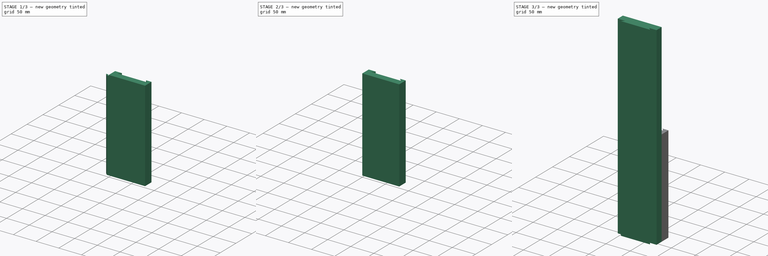
[diagram: build sequence overview — one tinted view per stage of 3, left to right]
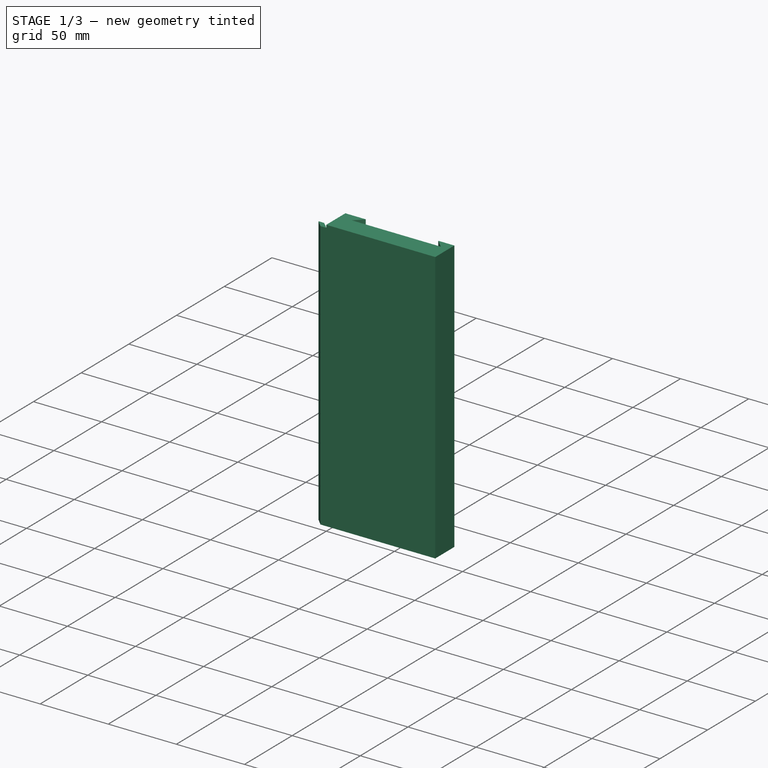
[diagram: stage 1 of 3 — iso view after this stage's code; geometry added in this stage tinted green]
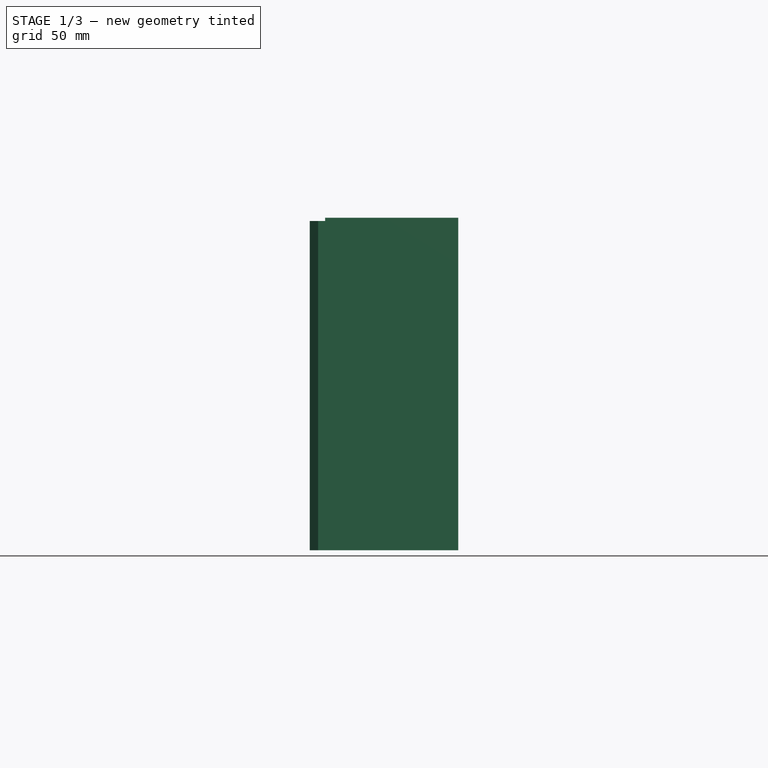
[diagram: stage 1 of 3 — front view after this stage's code; geometry added in this stage tinted green]
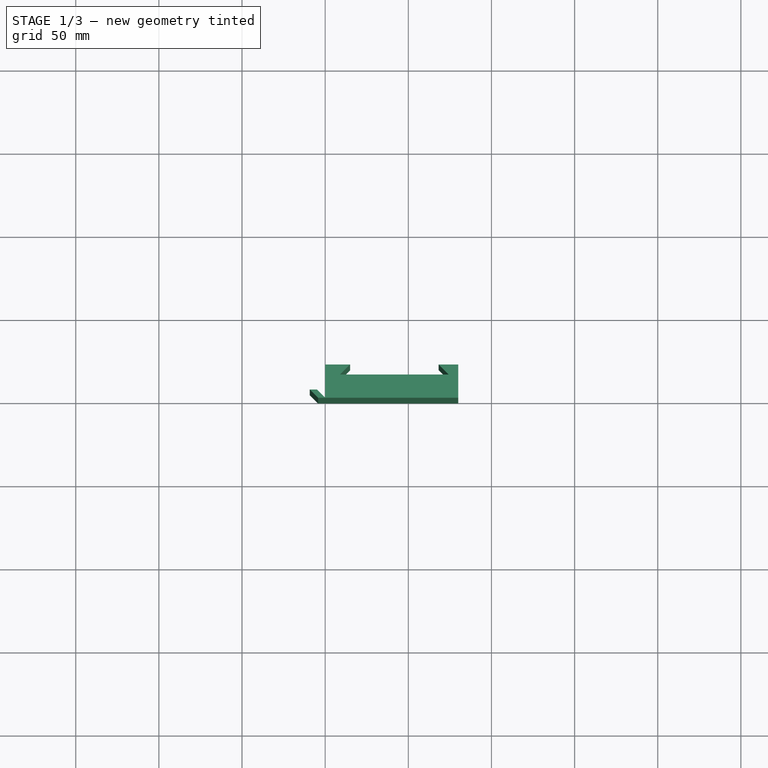
[diagram: stage 1 of 3 — top view after this stage's code; geometry added in this stage tinted green]
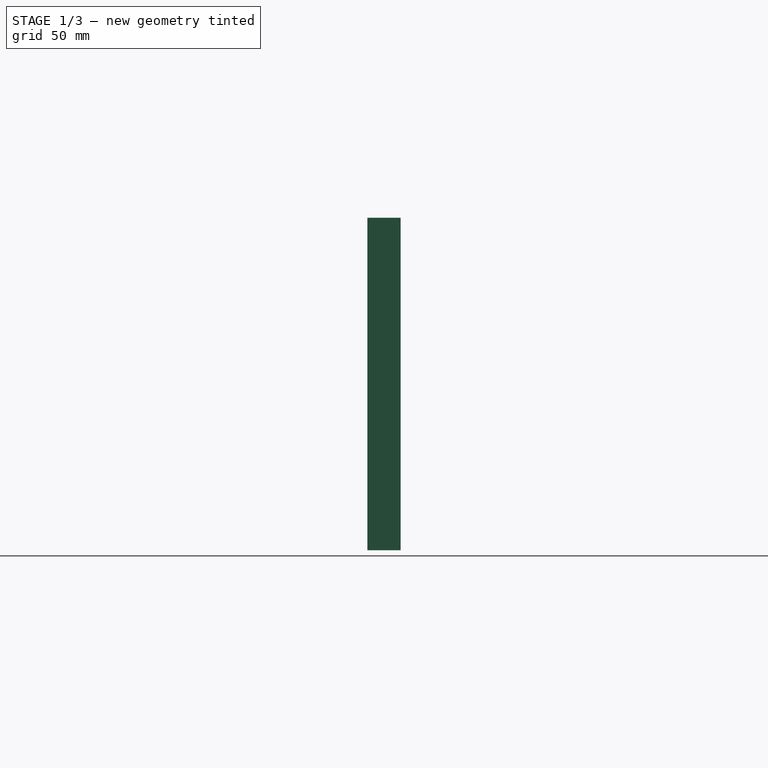
[diagram: stage 1 of 3 — right view after this stage's code; geometry added in this stage tinted green]
FCSTD DOCUMENT  (FreeCAD 0.19R24267 +99 (Git))
Label: DovetailSlide
License: All rights reserved
LicenseURL: https://en.wikipedia.org/wiki/All_rights_reserved
objects: Sketcher::SketchObject×4, PartDesign::Pad×4, PartDesign::Body×4, Spreadsheet::Sheet×1, Part::Cut×1
note: 17 computed .brp shape members not serialized (recipe doc carries the construction recipe); baked Part::Feature solids carry a one-line shape summary decoded from their .brp

FEATURE [Spreadsheet::Sheet] Spreadsheet  label="DovetailSlideParameters"
  cells = A2=Dovetail depth; B2(dovetail_depth)=5; E2=Pressure bar x offset; F2==dovetail_pressurebar_width / cos(dovetail_deg); A3=Dovetail angle; B3(dovetail_deg)=45; A4=Dovetail width; B4(dovetail_width)=60; A5=Dovetail edge play; B5(dovetail_edge_play)=1; C5=This is a cutoff on the knife like edges that's introduced due to the cutter not cutting perfectly well; A6=Pressure bar width; B6(dovetail_pressurebar_width)=3; C6=Width difference for a pressure bar; A7=Dovetail depth difference; B7(dovetail_depth_difference)=1; A8=Blank width Female; B8(blank_female)=80; A9=Blank width Male; B9(blank_male)=80; A10=Blank female total thickness; B10(blankthickness_female)=20; A11=Blank male total thickness; B11(blank_thickness_male)=20; A12=Female length; B12(length_female)=200; A13=Male length; B13(length_male)=400; A14=Pressure bar inset; B14(pressurebarinset)=1
FEATURE [Sketcher::SketchObject] Sketch  label="SketchFemale"
  FullyConstrained = true
  MapMode = 5
  Support = -> [XY_Plane]
  expr: Constraints[21] = (<<DovetailSlideParameters>>.blank_female - (<<DovetailSlideParameters>>.dovetail_width + 2 * <<DovetailSlideParameters>>.dovetail_depth_difference / tan(<<DovetailSlideParameters>>.dovetail_deg))) / 2
  expr: Constraints[19] = <<DovetailSlideParameters>>.blank_female
  expr: Constraints[18] = <<DovetailSlideParameters>>.dovetail_width + 2 * <<DovetailSlideParameters>>.dovetail_depth_difference / tan(<<DovetailSlideParameters>>.dovetail_deg) + <<DovetailSlideParameters>>.dovetail_pressurebar_width / sin(<<DovetailSlideParameters>>.dovetail_deg) - <<DovetailSlideParameters>>.pressurebarinset
  expr: Constraints[22] = <<DovetailSlideParameters>>.dovetail_depth + <<DovetailSlideParameters>>.dovetail_depth_difference
  expr: Constraints[17] = <<DovetailSlideParameters>>.blankthickness_female
  expr: Constraints[16] = <<DovetailSlideParameters>>.dovetail_deg
  expr: Constraints[20] = <<DovetailSlideParameters>>.blankthickness_female
  expr: Constraints[15] = <<DovetailSlideParameters>>.dovetail_deg
  sketch-geometry (8):
    g0: LineSegment StartX=0 StartY=0 StartZ=0 EndX=80 EndY=0 EndZ=0
    g1: LineSegment StartX=80 StartY=0 StartZ=0 EndX=80 EndY=20 EndZ=0
    g2: LineSegment StartX=80 StartY=20 StartZ=0 EndX=68.2426 EndY=20 EndZ=0
    g3: LineSegment StartX=68.2426 StartY=20 StartZ=0 EndX=74.2426 EndY=14 EndZ=0
    g4: LineSegment StartX=74.2426 StartY=14 StartZ=0 EndX=9 EndY=14 EndZ=0
    g5: LineSegment StartX=9 StartY=14 StartZ=0 EndX=15 EndY=20 EndZ=0
    g6: LineSegment StartX=15 StartY=20 StartZ=0 EndX=0 EndY=20 EndZ=0
    g7: LineSegment StartX=0 StartY=20 StartZ=0 EndX=0 EndY=0 EndZ=0
  constraints (23):
    c: Coincident(g-1,g0)
    c: Coincident(g0,g1)
    c: Coincident(g1,g2)
    c: Coincident(g2,g3)
    c: Coincident(g3,g4)
    c: Coincident(g4,g5)
    c: Coincident(g5,g6)
    c: Coincident(g6,g7)
    c: Coincident(g7,g0)
    c: Vertical(g7)
    c: Vertical(g1)
    c: Horizontal(g6)
    c: Horizontal(g4)
    c: Horizontal(g2)
    c: Horizontal(g0)
    c: Angle(g6,g5) = 0.785398
    c: Angle(g3,g2) = 0.785398
    c: DistanceY(g7,g7) = 20
    c: DistanceX(g4,g4) = 65.2426
    c: DistanceX(g0,g0) = 80
    c: DistanceY(g1,g1) = 20
    c: DistanceX(g6,g4) = 9
    c: DistanceY(g4,g5) = 6
FEATURE [PartDesign::Pad] Pad
  Direction = (1,1,1)
  Length = 200
  Length2 = 100
  Profile = -> Sketch
  Type = 0
  expr: Length = <<DovetailSlideParameters>>.length_female
FEATURE [PartDesign::Body] Body002  label="PressureBar"
  Group = -> [Sketch002,Pad002]
  Origin = -> Origin002
  Placement = pos=(74.2426,15,1) rot=(0,0,1;0rad)
  Tip = -> Pad002
  expr: .Placement.Base.z = <<DovetailSlideParameters>>.pressurebarinset
  expr: .Placement.Base.y = <<DovetailSlideParameters>>.blankthickness_female - <<DovetailSlideParameters>>.dovetail_depth
  expr: .Placement.Base.x = (<<DovetailSlideParameters>>.blank_male - <<DovetailSlideParameters>>.dovetail_width) / 2 + <<DovetailSlideParameters>>.dovetail_width + <<DovetailSlideParameters>>.dovetail_pressurebar_width / sin(<<DovetailSlideParameters>>.dovetail_deg)
FEATURE [Sketcher::SketchObject] Sketch003
  FullyConstrained = true
  MapMode = 5
  Support = -> [XY_Plane003]
  expr: Constraints[8] = <<DovetailSlideParameters>>.dovetail_pressurebar_width / sin(<<DovetailSlideParameters>>.dovetail_deg)
  expr: Constraints[9] = <<DovetailSlideParameters>>.dovetail_deg
  expr: Constraints[10] = <<DovetailSlideParameters>>.dovetail_depth
  sketch-geometry (4):
    g0: LineSegment StartX=0 StartY=0 StartZ=0 EndX=-5 EndY=5 EndZ=0
    g1: LineSegment StartX=-5 StartY=5 StartZ=0 EndX=-9.24264 EndY=5 EndZ=0
    g2: LineSegment StartX=-9.24264 StartY=5 StartZ=0 EndX=-4.24264 EndY=0 EndZ=0
    g3: LineSegment StartX=-4.24264 StartY=0 StartZ=0 EndX=0 EndY=0 EndZ=0
  constraints (11):
    c: Coincident(g-1,g0)
    c: Coincident(g0,g1)
    c: Coincident(g1,g2)
    c: Coincident(g2,g3)
    c: Coincident(g3,g0)
    c: Horizontal(g1)
    c: Horizontal(g3)
    c: Equal(g0,g2)
    c: DistanceX(g1,g1) = 4.24264
    c: Angle(g0,g3) = 0.785398
    c: DistanceY(g2,g1) = 5
FEATURE [PartDesign::Pad] Pad003
  Direction = (1,1,1)
  Length = 198
  Length2 = 100
  Profile = -> Sketch003
  Type = 0
  expr: Length = <<DovetailSlideParameters>>.length_female - 2 * <<DovetailSlideParameters>>.pressurebarinset
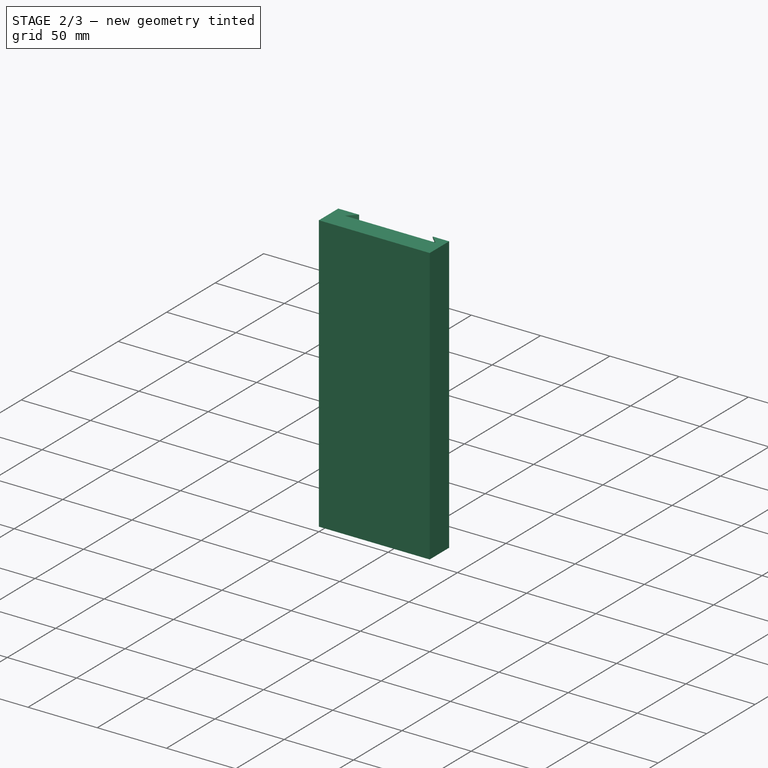
[diagram: stage 2 of 3 — iso view after this stage's code; geometry added in this stage tinted green]
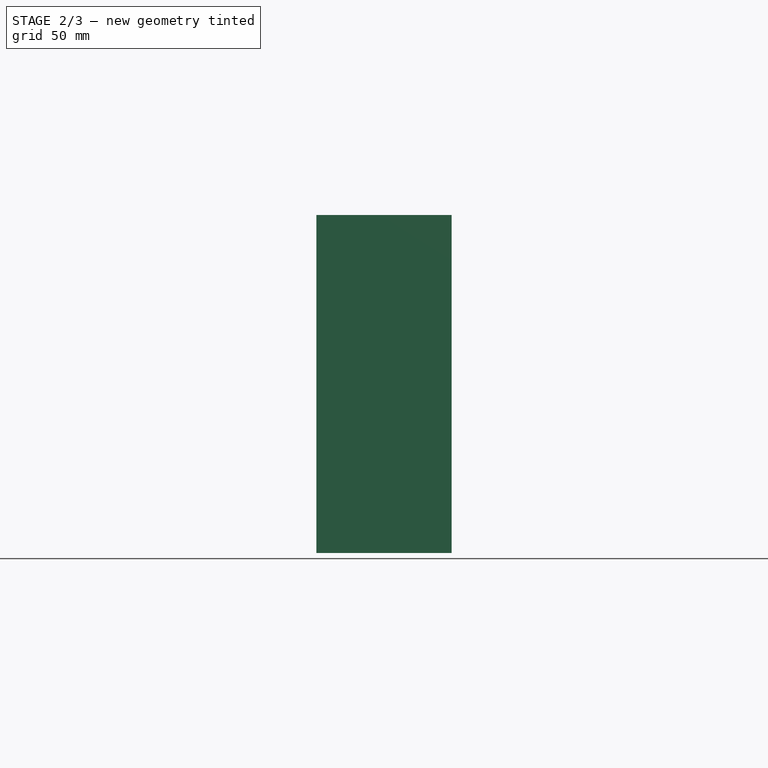
[diagram: stage 2 of 3 — front view after this stage's code; geometry added in this stage tinted green]
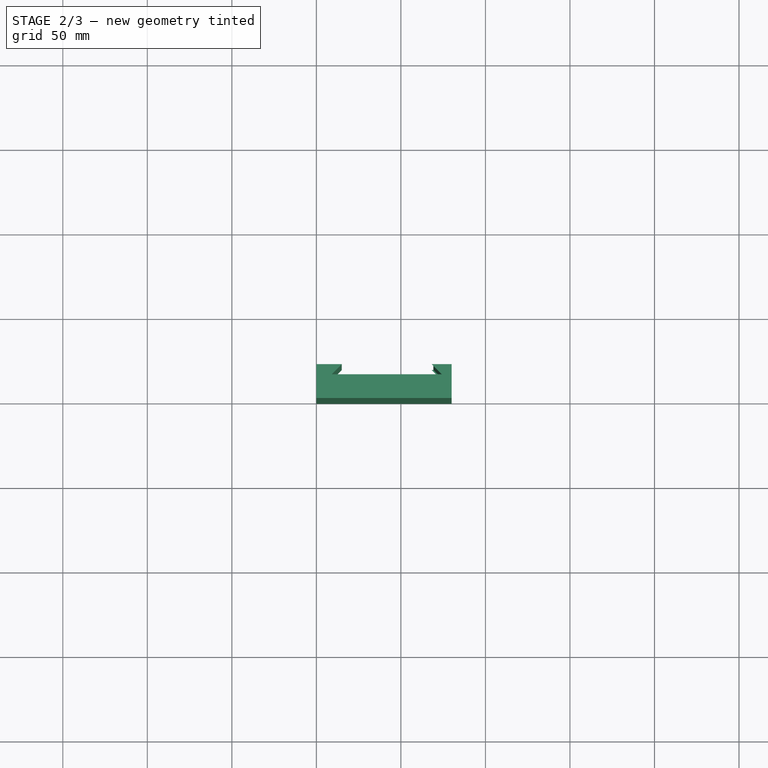
[diagram: stage 2 of 3 — top view after this stage's code; geometry added in this stage tinted green]
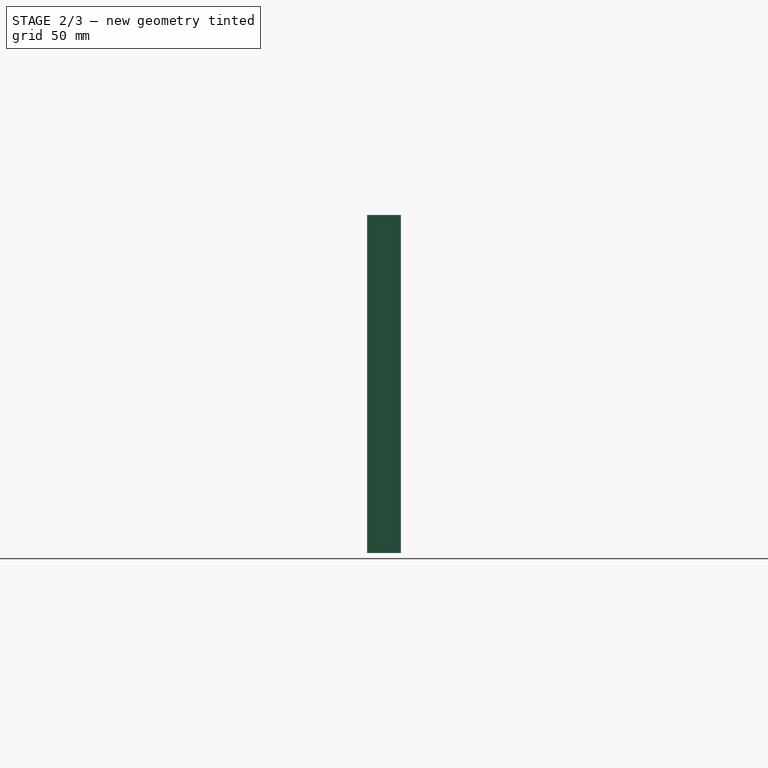
[diagram: stage 2 of 3 — right view after this stage's code; geometry added in this stage tinted green]
FEATURE [PartDesign::Body] Body003  label="PressureBarInset"
  Group = -> [Sketch003,Pad003]
  Origin = -> Origin003
  Placement = pos=(74.2426,15,1) rot=(0,0,1;0rad)
  Tip = -> Pad003
  expr: .Placement.Base.x = (<<DovetailSlideParameters>>.blank_male - <<DovetailSlideParameters>>.dovetail_width) / 2 + <<DovetailSlideParameters>>.dovetail_width + <<DovetailSlideParameters>>.dovetail_pressurebar_width / sin(<<DovetailSlideParameters>>.dovetail_deg)
  expr: .Placement.Base.y = <<DovetailSlideParameters>>.blankthickness_female - <<DovetailSlideParameters>>.dovetail_depth
  expr: .Placement.Base.z = <<DovetailSlideParameters>>.pressurebarinset
FEATURE [Part::Cut] Cut  label="Female"
  Base = -> Body
  Tool = -> Body003
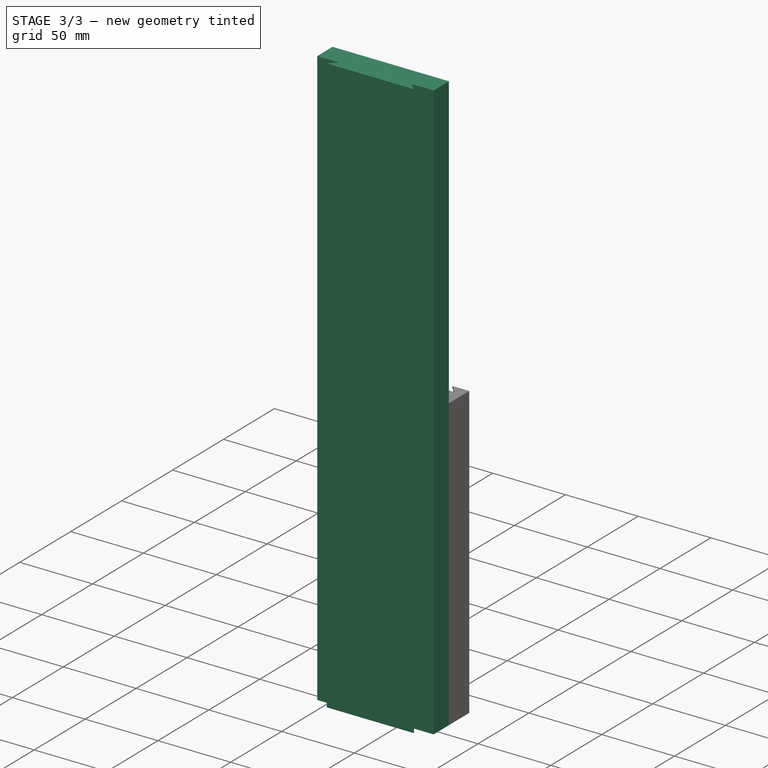
[diagram: stage 3 of 3 — iso view after this stage's code; geometry added in this stage tinted green]
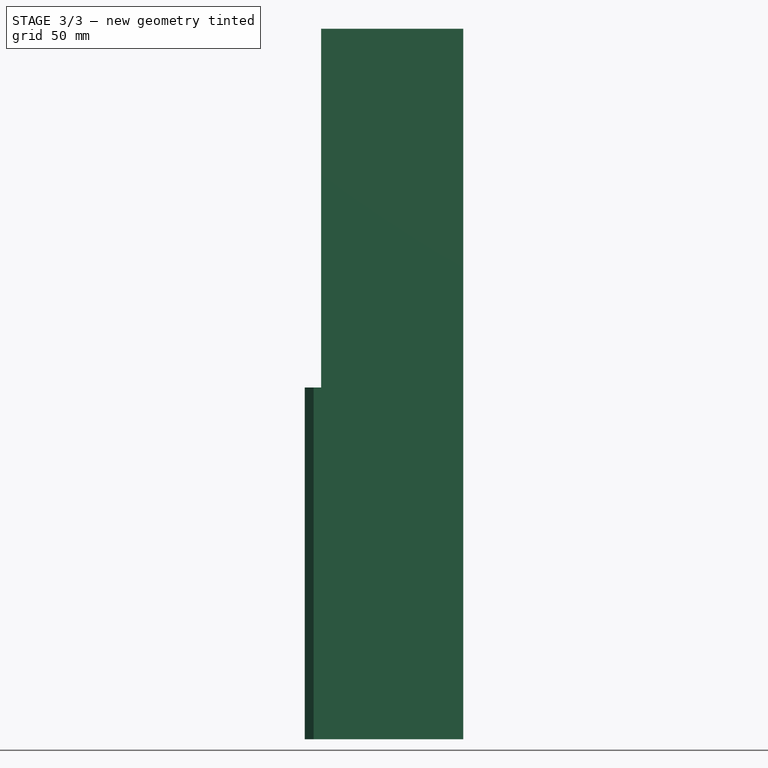
[diagram: stage 3 of 3 — front view after this stage's code; geometry added in this stage tinted green]
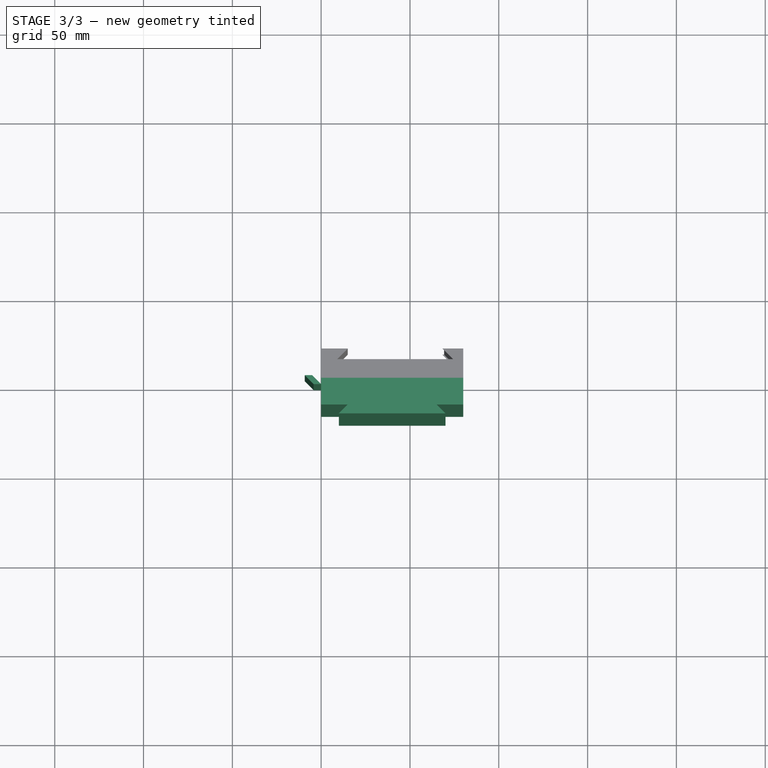
[diagram: stage 3 of 3 — top view after this stage's code; geometry added in this stage tinted green]
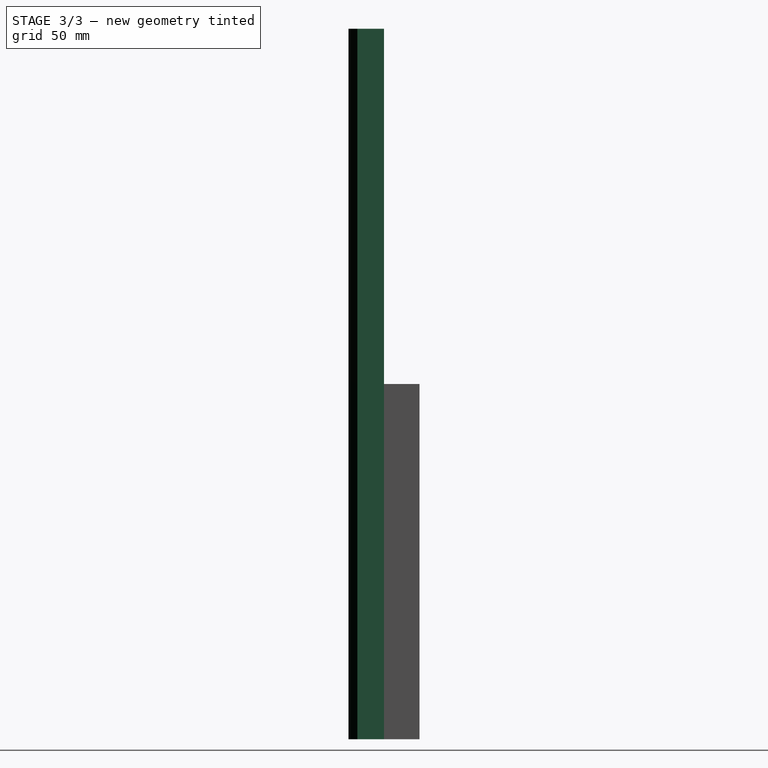
[diagram: stage 3 of 3 — right view after this stage's code; geometry added in this stage tinted green]
FEATURE [PartDesign::Body] Body  label="Female_NoInset"
  Group = -> [Sketch,Pad]
  Origin = -> Origin
  Tip = -> Pad
FEATURE [Sketcher::SketchObject] Sketch001
  FullyConstrained = true
  MapMode = 5
  Support = -> [XY_Plane001]
  expr: Constraints[21] = <<DovetailSlideParameters>>.dovetail_depth
  expr: Constraints[19] = <<DovetailSlideParameters>>.dovetail_deg
  expr: Constraints[18] = <<DovetailSlideParameters>>.dovetail_deg
  expr: Constraints[22] = <<DovetailSlideParameters>>.blank_thickness_male
  expr: Constraints[17] = (<<DovetailSlideParameters>>.blank_male - <<DovetailSlideParameters>>.dovetail_width) / 2
  expr: Constraints[16] = <<DovetailSlideParameters>>.dovetail_width
  expr: Constraints[20] = <<DovetailSlideParameters>>.dovetail_depth
  expr: Constraints[15] = <<DovetailSlideParameters>>.blank_male
  sketch-geometry (8):
    g0: LineSegment StartX=0 StartY=0 StartZ=0 EndX=80 EndY=0 EndZ=0
    g1: LineSegment StartX=80 StartY=0 StartZ=0 EndX=80 EndY=-15 EndZ=0
    g2: LineSegment StartX=80 StartY=-15 StartZ=0 EndX=65 EndY=-15 EndZ=0
    g3: LineSegment StartX=65 StartY=-15 StartZ=0 EndX=70 EndY=-20 EndZ=0
    g4: LineSegment StartX=70 StartY=-20 StartZ=0 EndX=10 EndY=-20 EndZ=0
    g5: LineSegment StartX=10 StartY=-20 StartZ=0 EndX=15 EndY=-15 EndZ=0
    g6: LineSegment StartX=15 StartY=-15 StartZ=0 EndX=0 EndY=-15 EndZ=0
    g7: LineSegment StartX=0 StartY=-15 StartZ=0 EndX=0 EndY=0 EndZ=0
  constraints (23):
    c: Coincident(g-1,g0)
    c: Horizontal(g0)
    c: Coincident(g0,g1)
    c: Vertical(g1)
    c: Coincident(g1,g2)
    c: Horizontal(g2)
    c: Coincident(g2,g3)
    c: Coincident(g3,g4)
    c: Horizontal(g4)
    c: Coincident(g4,g5)
    c: Coincident(g5,g6)
    c: Horizontal(g6)
    c: Coincident(g6,g7)
    c: Coincident(g7,g0)
    c: Vertical(g7)
    c: DistanceX(g0,g0) = 80
    c: DistanceX(g4,g3) = 60
    c: DistanceX(g6,g4) = 10
    c: Angle(g6,g5) = 0.785398
    c: Angle(g3,g2) = 0.785398
    c: DistanceY(g4,g5) = 5
    c: DistanceY(g3,g2) = 5
    c: DistanceY(g3,g0) = 20
FEATURE [PartDesign::Pad] Pad001
  Direction = (1,1,1)
  Length = 400
  Length2 = 100
  Profile = -> Sketch001
  Type = 0
  expr: Length = <<DovetailSlideParameters>>.length_male
FEATURE [PartDesign::Body] Body001  label="Male"
  Group = -> [Sketch001,Pad001]
  Origin = -> Origin001
  Placement = pos=(0,35,0) rot=(0,0,1;0rad)
  Tip = -> Pad001
  expr: .Placement.Base.y = <<DovetailSlideParameters>>.blank_thickness_male + <<DovetailSlideParameters>>.blankthickness_female - <<DovetailSlideParameters>>.dovetail_depth
FEATURE [Sketcher::SketchObject] Sketch002
  FullyConstrained = true
  MapMode = 5
  Support = -> [XY_Plane002]
  expr: Constraints[10] = <<DovetailSlideParameters>>.dovetail_depth
  expr: Constraints[9] = <<DovetailSlideParameters>>.dovetail_deg
  expr: Constraints[8] = <<DovetailSlideParameters>>.dovetail_pressurebar_width / sin(<<DovetailSlideParameters>>.dovetail_deg)
  sketch-geometry (4):
    g0: LineSegment StartX=0 StartY=0 StartZ=0 EndX=-5 EndY=5 EndZ=0
    g1: LineSegment StartX=-5 StartY=5 StartZ=0 EndX=-9.24264 EndY=5 EndZ=0
    g2: LineSegment StartX=-9.24264 StartY=5 StartZ=0 EndX=-4.24264 EndY=0 EndZ=0
    g3: LineSegment StartX=-4.24264 StartY=0 StartZ=0 EndX=0 EndY=0 EndZ=0
  constraints (11):
    c: Coincident(g-1,g0)
    c: Coincident(g0,g1)
    c: Coincident(g1,g2)
    c: Coincident(g2,g3)
    c: Coincident(g3,g0)
    c: Horizontal(g1)
    c: Horizontal(g3)
    c: Equal(g0,g2)
    c: DistanceX(g1,g1) = 4.24264
    c: Angle(g0,g3) = 0.785398
    c: DistanceY(g2,g1) = 5
FEATURE [PartDesign::Pad] Pad002
  Direction = (1,1,1)
  Length = 198
  Length2 = 100
  Profile = -> Sketch002
  Type = 0
  expr: Length = <<DovetailSlideParameters>>.length_female - 2 * <<DovetailSlideParameters>>.pressurebarinset
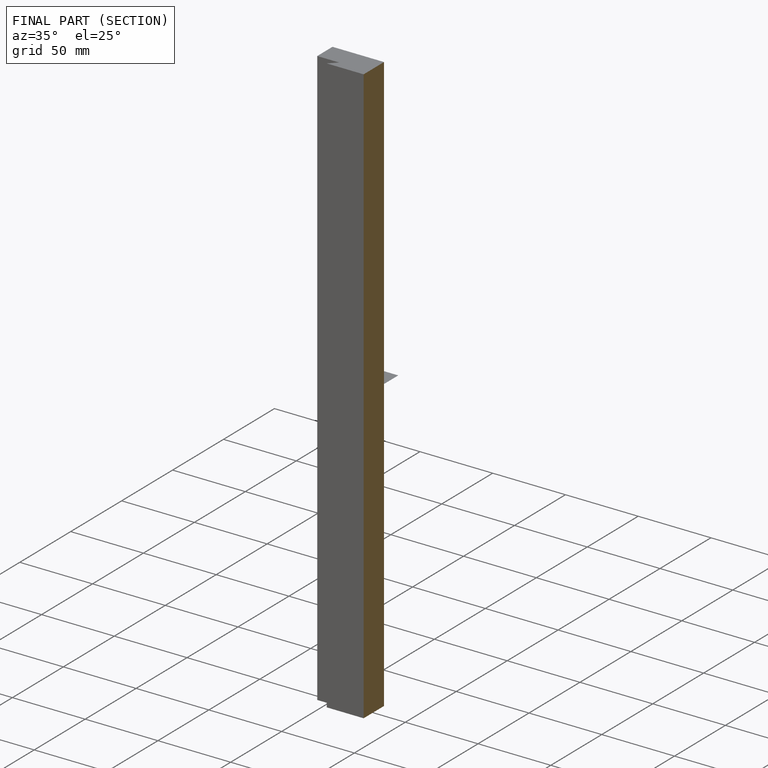
[diagram: finished part — half-section view (interior)]
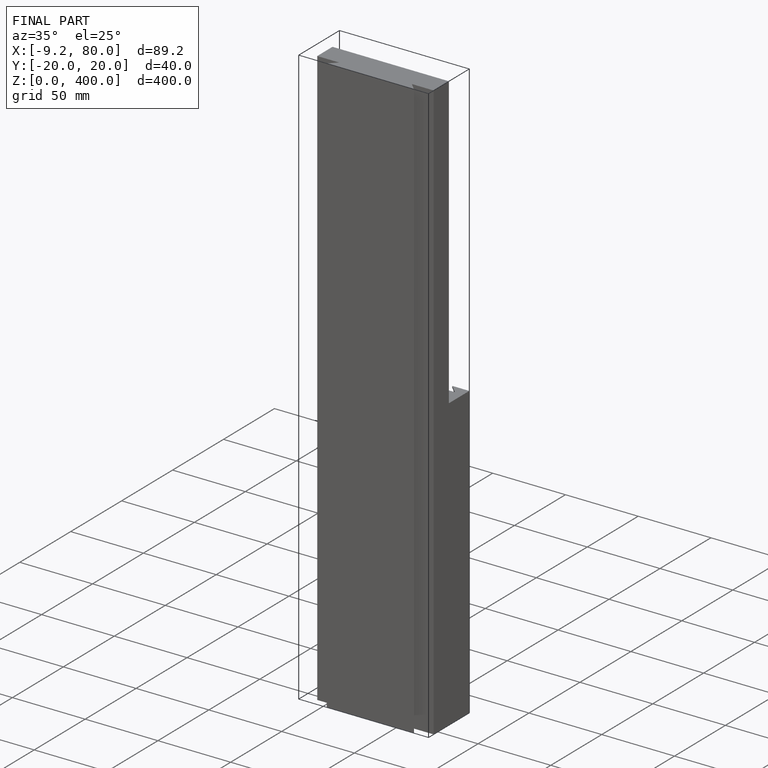
[diagram: finished part — iso view with bounding-box wireframe]
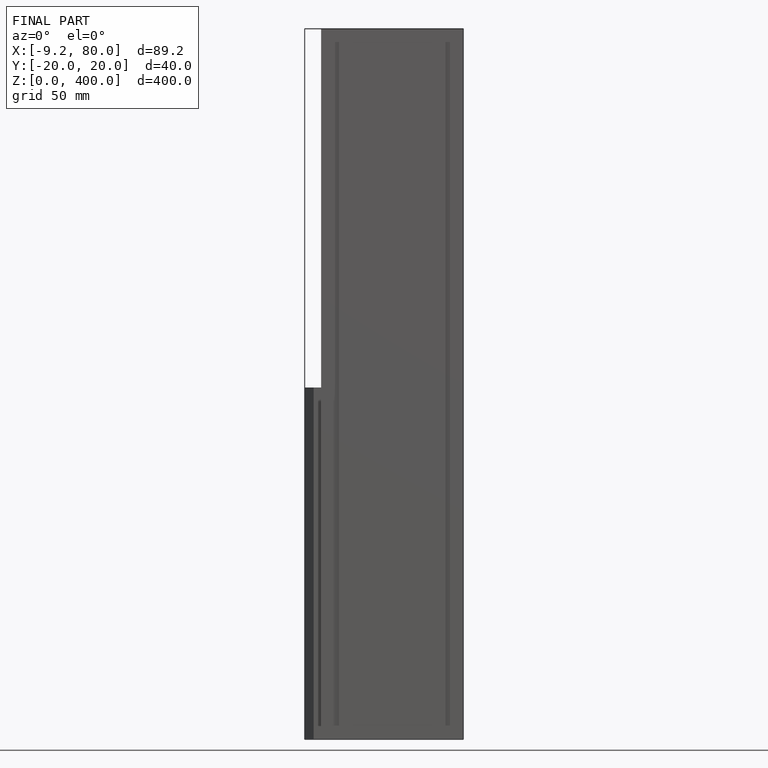
[diagram: finished part — front view with bounding-box wireframe]
